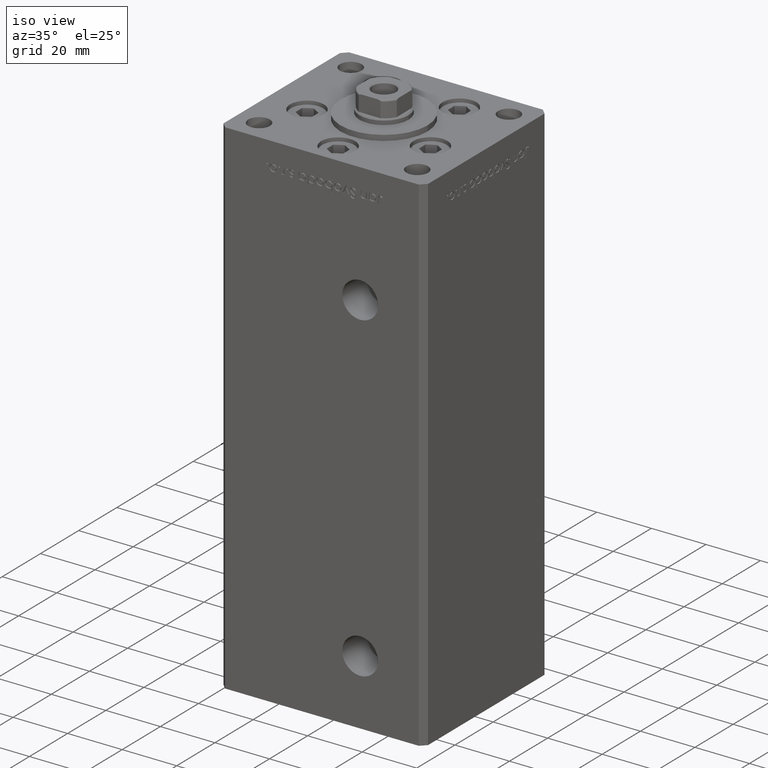
[diagram: clean part render]
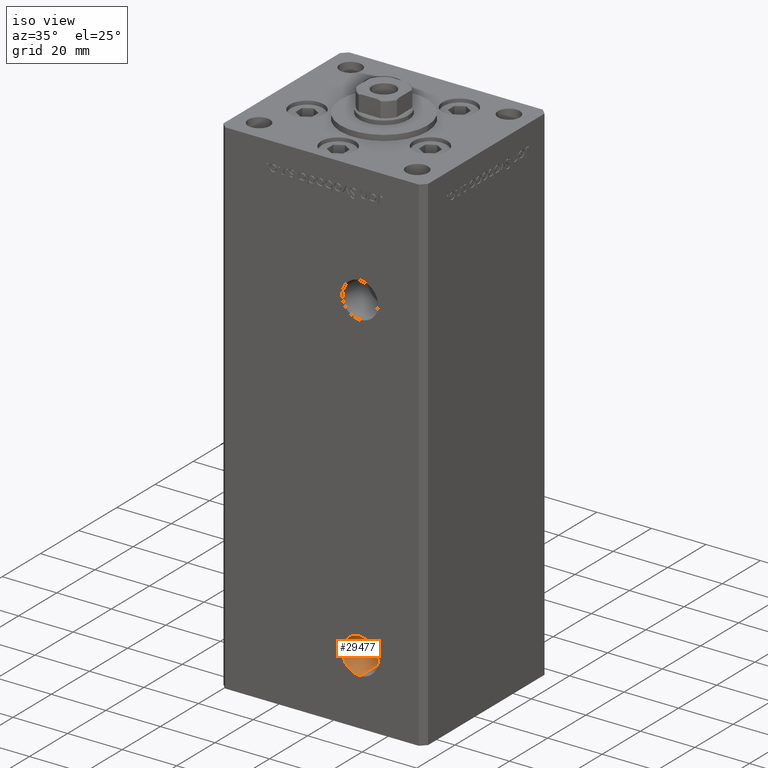
[diagram: same view with one face highlighted and labeled with its STEP entity id]
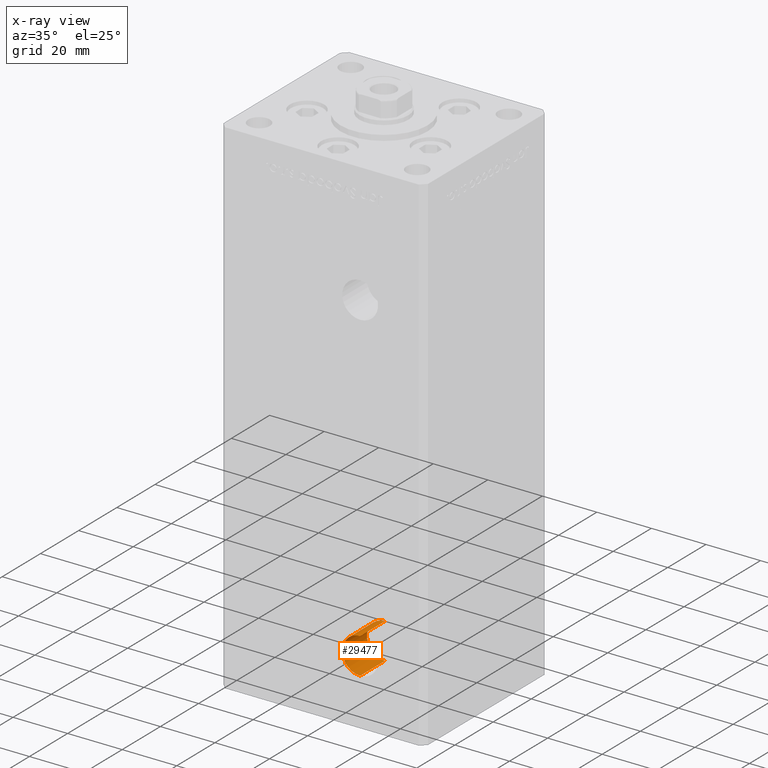
[diagram: x-ray of the same camera — body ghosted, the highlighted face saturated]
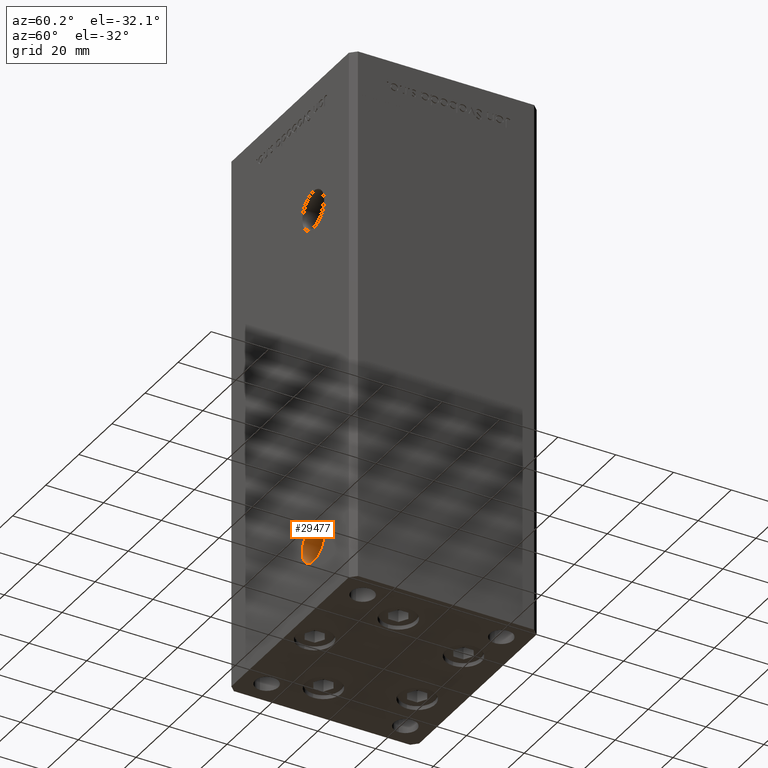
[diagram: same view with one face highlighted and labeled with its STEP entity id]
A machine part, iso view. The second image highlights one B-rep face of the part: STEP entity #29477.
The next image is the same camera in x-ray: the body ghosted, the highlighted face saturated — about 0% of this face is hidden behind the body in this view.
A second angle (auxiliary view) of the same face is appended — the face is thin or edge-on in the first view.
In plain terms, the highlighted cylindrical surface (edge-blend (fillet) strip) has radius 6.58 mm, axis along (-0, -1, -0).
Its self-contained STEP definition (entity closure, byte-faithful):
#1214 = AXIS2_PLACEMENT_3D ( 'NONE', #47973, #39565, #2853 ) ;
#2179 = CARTESIAN_POINT ( 'NONE',  ( 13.99999999999999112, -19.50000000000000355, 2.420000000000009699 ) ) ;
#2853 = DIRECTION ( 'NONE',  ( 0.000000000000000000, 0.000000000000000000, -1.000000000000000000 ) ) ;
#3024 = DIRECTION ( 'NONE',  ( 0.000000000000000000, -1.000000000000000000, 0.000000000000000000 ) ) ;
#3052 = EDGE_CURVE ( 'NONE', #15253, #16600, #38336, .T. ) ;
#6067 = CYLINDRICAL_SURFACE ( 'NONE', #40489, 6.579999999999998295 ) ;
#7617 = CARTESIAN_POINT ( 'NONE',  ( 13.99999999999999112, -19.50000000000000355, 2.420000000000009699 ) ) ;
#11879 = ORIENTED_EDGE ( 'NONE', *, *, #45316, .T. ) ;
#13489 = FACE_OUTER_BOUND ( 'NONE', #42242, .T. ) ;
#13676 = ORIENTED_EDGE ( 'NONE', *, *, #27403, .T. ) ;
#14077 = LINE ( 'NONE', #2179, #51540 ) ;
#15253 = VERTEX_POINT ( 'NONE', #44715 ) ;
#16600 = VERTEX_POINT ( 'NONE', #7617 ) ;
#18279 = DIRECTION ( 'NONE',  ( -0.000000000000000000, -1.000000000000000000, -0.000000000000000000 ) ) ;
#19118 = DIRECTION ( 'NONE',  ( 0.000000000000000000, 0.000000000000000000, -1.000000000000000000 ) ) ;
#21638 = DIRECTION ( 'NONE',  ( -0.000000000000000000, -1.000000000000000000, -0.000000000000000000 ) ) ;
#22373 = DIRECTION ( 'NONE',  ( -0.000000000000000000, -1.000000000000000000, -0.000000000000000000 ) ) ;
#22890 = VECTOR ( 'NONE', #22373, 1000.000000000000000 ) ;
#23837 = CARTESIAN_POINT ( 'NONE',  ( 13.99999999999999112, -32.50000000000000000, 15.58000000000000718 ) ) ;
#24424 = CIRCLE ( 'NONE', #52210, 6.579999999999998295 ) ;
#26543 = CARTESIAN_POINT ( 'NONE',  ( 13.99999999999999112, -32.50000000000000000, 9.000000000000007105 ) ) ;
#27403 = EDGE_CURVE ( 'NONE', #41450, #35831, #24424, .T. ) ;
#29477 = ADVANCED_FACE ( 'NONE', ( #13489 ), #6067, .F. ) ;
#34106 = CARTESIAN_POINT ( 'NONE',  ( 13.99999999999999112, -32.50000000000000000, 2.420000000000009699 ) ) ;
#35310 = LINE ( 'NONE', #51635, #22890 ) ;
#35474 = ORIENTED_EDGE ( 'NONE', *, *, #45622, .F. ) ;
#35831 = VERTEX_POINT ( 'NONE', #34106 ) ;
#37915 = ORIENTED_EDGE ( 'NONE', *, *, #3052, .F. ) ;
#38336 = CIRCLE ( 'NONE', #1214, 6.579999999999998295 ) ;
#39565 = DIRECTION ( 'NONE',  ( 0.000000000000000000, -1.000000000000000000, 0.000000000000000000 ) ) ;
#40489 = AXIS2_PLACEMENT_3D ( 'NONE', #50155, #21638, #50414 ) ;
#41450 = VERTEX_POINT ( 'NONE', #23837 ) ;
#42242 = EDGE_LOOP ( 'NONE', ( #37915, #11879, #13676, #35474 ) ) ;
#44715 = CARTESIAN_POINT ( 'NONE',  ( 13.99999999999999112, -19.50000000000000355, 15.58000000000000718 ) ) ;
#45316 = EDGE_CURVE ( 'NONE', #15253, #41450, #35310, .T. ) ;
#45622 = EDGE_CURVE ( 'NONE', #16600, #35831, #14077, .T. ) ;
#47973 = CARTESIAN_POINT ( 'NONE',  ( 13.99999999999999112, -19.50000000000000355, 9.000000000000007105 ) ) ;
#50155 = CARTESIAN_POINT ( 'NONE',  ( 13.99999999999999112, -19.50000000000000355, 9.000000000000007105 ) ) ;
#50414 = DIRECTION ( 'NONE',  ( 0.000000000000000000, 0.000000000000000000, -1.000000000000000000 ) ) ;
#51540 = VECTOR ( 'NONE', #18279, 1000.000000000000000 ) ;
#51635 = CARTESIAN_POINT ( 'NONE',  ( 13.99999999999999112, -19.50000000000000355, 15.58000000000000718 ) ) ;
#52210 = AXIS2_PLACEMENT_3D ( 'NONE', #26543, #3024, #19118 ) ;